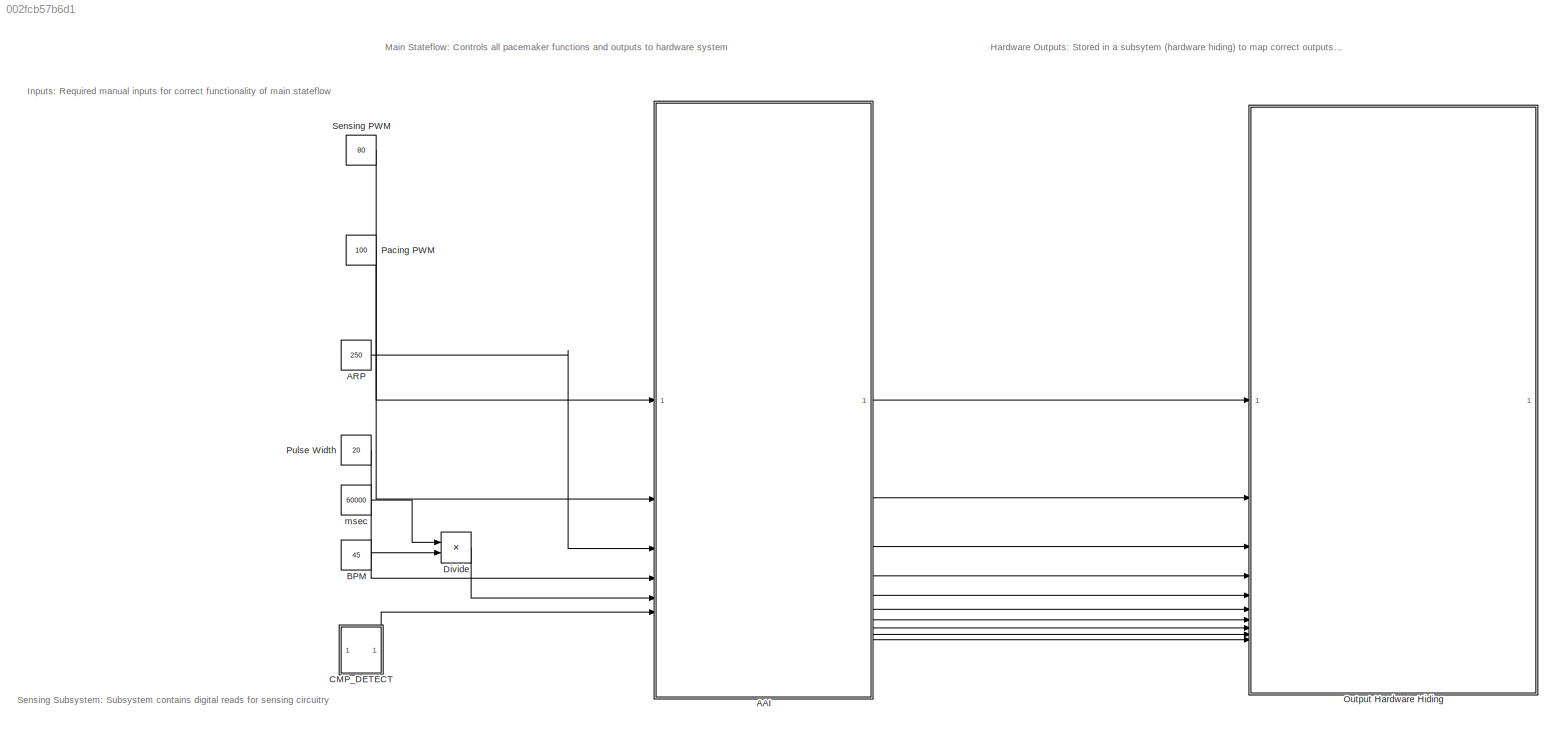
MODEL slx_002fcb57b6d1
KIND model
CONFIG AbsTol = auto
CONFIG EnableMultiTasking = on
CONFIG FixedStep = 1e-3
CONFIG MaxStep = auto
CONFIG MinStep = auto
CONFIG RelTol = 1e-3
CONFIG SampleTimeConstraint = Unconstrained
CONFIG SolverName = FixedStepAuto
CONFIG StartTime = 0.0
CONFIG StopTime = 10.0
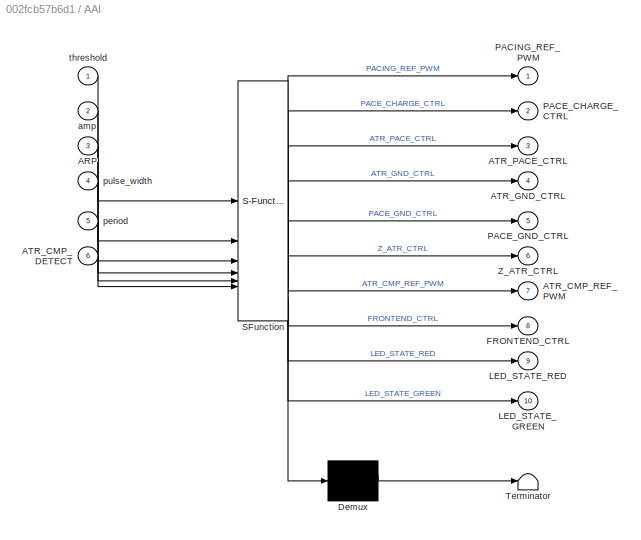
BLOCK [SubSystem] AAI
  ErrorFcn = Stateflow.Translate.translate
  PermitHierarchicalResolution = ExplicitOnly
  SFBlockType = Chart
  TreatAsAtomicUnit = on
BLOCK [Demux] AAI/ Demux 
  Outputs = 1
BLOCK [S-Function] AAI/ SFunction 
  EnableBusSupport = on
  FunctionName = sf_sfun
  PortCounts = [6 11]
  SFcnIsStateOwnerBlock = off
  SFunctionDeploymentMode = off
  Tag = Stateflow S-Function 3
BLOCK [Terminator] AAI/ Terminator 
BLOCK [Inport] AAI/ARP
  Port = 3
BLOCK [Inport] AAI/ATR_CMP_DETECT
  Port = 6
BLOCK [Outport] AAI/ATR_CMP_REF_PWM
  Port = 7
BLOCK [Outport] AAI/ATR_GND_CTRL
  Port = 4
BLOCK [Outport] AAI/ATR_PACE_CTRL
  Port = 3
BLOCK [Outport] AAI/FRONTEND_CTRL
  Port = 8
BLOCK [Outport] AAI/LED_STATE_GREEN
  Port = 10
BLOCK [Outport] AAI/LED_STATE_RED
  Port = 9
BLOCK [Outport] AAI/PACE_CHARGE_CTRL
  Port = 2
BLOCK [Outport] AAI/PACE_GND_CTRL
  Port = 5
BLOCK [Outport] AAI/PACING_REF_PWM
BLOCK [Outport] AAI/Z_ATR_CTRL
  Port = 6
BLOCK [Inport] AAI/amp
  Port = 2
BLOCK [Inport] AAI/period
  Port = 5
BLOCK [Inport] AAI/pulse_width
  Port = 4
BLOCK [Inport] AAI/threshold
BLOCK [Constant] ARP
  Value = 250
BLOCK [Constant] BPM
  Value = 45
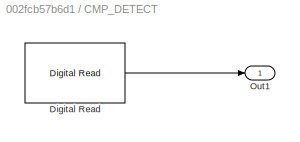
BLOCK [SubSystem] CMP_DETECT
BLOCK [Reference] CMP_DETECT/Digital Read  REF=frdmk64flib/Digital Read
  SourceBlock = frdmk64flib/Digital Read
  SourceType = freedomk64f.DigitalRead
BLOCK [Outport] CMP_DETECT/Out1
BLOCK [Product] Divide
  Inputs = */
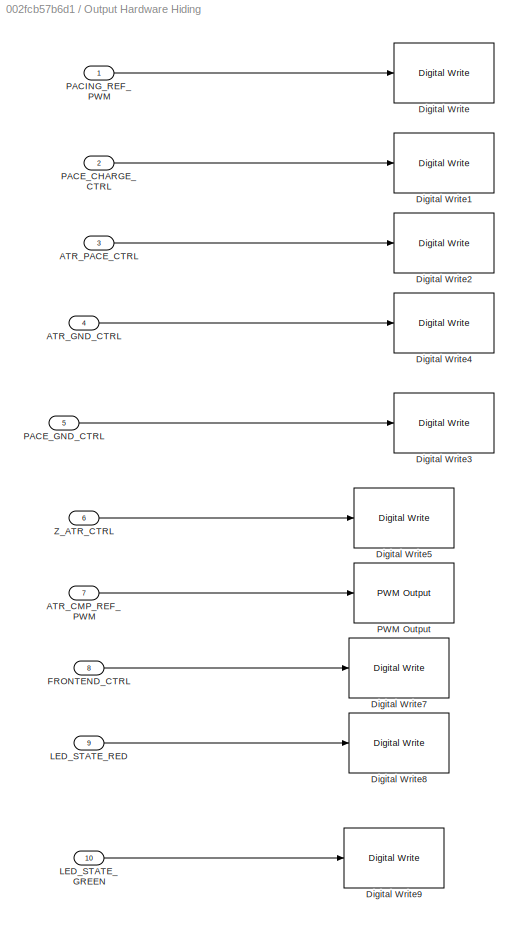
BLOCK [SubSystem] Output Hardware Hiding
BLOCK [Inport] Output Hardware Hiding/ATR_CMP_REF_PWM
  Port = 7
BLOCK [Inport] Output Hardware Hiding/ATR_GND_CTRL
  Port = 4
BLOCK [Inport] Output Hardware Hiding/ATR_PACE_CTRL
  Port = 3
BLOCK [Reference] Output Hardware Hiding/Digital Write  REF=frdmk64flib/Digital Write
  SourceBlock = frdmk64flib/Digital Write
  SourceType = freedomk64f.DigitalWrite
BLOCK [Reference] Output Hardware Hiding/Digital Write1  REF=frdmk64flib/Digital Write
  SourceBlock = frdmk64flib/Digital Write
  SourceType = freedomk64f.DigitalWrite
BLOCK [Reference] Output Hardware Hiding/Digital Write2  REF=frdmk64flib/Digital Write
  SourceBlock = frdmk64flib/Digital Write
  SourceType = freedomk64f.DigitalWrite
BLOCK [Reference] Output Hardware Hiding/Digital Write3  REF=frdmk64flib/Digital Write
  SourceBlock = frdmk64flib/Digital Write
  SourceType = freedomk64f.DigitalWrite
BLOCK [Reference] Output Hardware Hiding/Digital Write4  REF=frdmk64flib/Digital Write
  SourceBlock = frdmk64flib/Digital Write
  SourceType = freedomk64f.DigitalWrite
BLOCK [Reference] Output Hardware Hiding/Digital Write5  REF=frdmk64flib/Digital Write
  SourceBlock = frdmk64flib/Digital Write
  SourceType = freedomk64f.DigitalWrite
BLOCK [Reference] Output Hardware Hiding/Digital Write7  REF=frdmk64flib/Digital Write
  SourceBlock = frdmk64flib/Digital Write
  SourceType = freedomk64f.DigitalWrite
BLOCK [Reference] Output Hardware Hiding/Digital Write8  REF=frdmk64flib/Digital Write
  SourceBlock = frdmk64flib/Digital Write
  SourceType = freedomk64f.DigitalWrite
BLOCK [Reference] Output Hardware Hiding/Digital Write9  REF=frdmk64flib/Digital Write
  SourceBlock = frdmk64flib/Digital Write
  SourceType = freedomk64f.DigitalWrite
BLOCK [Inport] Output Hardware Hiding/FRONTEND_CTRL
  Port = 8
BLOCK [Inport] Output Hardware Hiding/LED_STATE_GREEN
  Port = 10
BLOCK [Inport] Output Hardware Hiding/LED_STATE_RED
  Port = 9
BLOCK [Inport] Output Hardware Hiding/PACE_CHARGE_CTRL
  Port = 2
BLOCK [Inport] Output Hardware Hiding/PACE_GND_CTRL
  Port = 5
BLOCK [Inport] Output Hardware Hiding/PACING_REF_PWM
BLOCK [Reference] Output Hardware Hiding/PWM Output  REF=frdmk64flib/PWM Output
  SourceBlock = frdmk64flib/PWM Output
  SourceType = freedomk64f.PWMOutput
BLOCK [Inport] Output Hardware Hiding/Z_ATR_CTRL
  Port = 6
BLOCK [Constant] Pacing PWM
  Value = 100
BLOCK [Constant] Pulse Width
  Value = 20
BLOCK [Constant] Sensing PWM
  Value = 80
BLOCK [Constant] msec
  Value = 60000
ANNOTATION (root): Inputs: Required manual inputs for correct functionality of main stateflow
ANNOTATION (root): Sensing Subsystem: Subsystem contains digital reads for sensing circuitry
ANNOTATION (root): Hardware Outputs: Stored in a subsytem (hardware hiding) to map correct outputs to associated hardware pins.
ANNOTATION (root): Main Stateflow: Controls all pacemaker functions and outputs to hardware system
LINE AAI:1 -> Output Hardware Hiding:1
LINE AAI:10 -> Output Hardware Hiding:10
LINE AAI:2 -> Output Hardware Hiding:2
LINE AAI:3 -> Output Hardware Hiding:3
LINE AAI:4 -> Output Hardware Hiding:4
LINE AAI:5 -> Output Hardware Hiding:5
LINE AAI:6 -> Output Hardware Hiding:6
LINE AAI:7 -> Output Hardware Hiding:7
LINE AAI:8 -> Output Hardware Hiding:8
LINE AAI:9 -> Output Hardware Hiding:9
LINE ARP:1 -> AAI:3
LINE BPM:1 -> Divide:2
LINE CMP_DETECT/Digital Read:1 -> CMP_DETECT/Out1:1
LINE CMP_DETECT:1 -> AAI:6
LINE Divide:1 -> AAI:5
LINE Output Hardware Hiding/ATR_CMP_REF_PWM:1 -> Output Hardware Hiding/PWM Output:1
LINE Output Hardware Hiding/ATR_GND_CTRL:1 -> Output Hardware Hiding/Digital Write4:1
LINE Output Hardware Hiding/ATR_PACE_CTRL:1 -> Output Hardware Hiding/Digital Write2:1
LINE Output Hardware Hiding/FRONTEND_CTRL:1 -> Output Hardware Hiding/Digital Write7:1
LINE Output Hardware Hiding/LED_STATE_GREEN:1 -> Output Hardware Hiding/Digital Write9:1
LINE Output Hardware Hiding/LED_STATE_RED:1 -> Output Hardware Hiding/Digital Write8:1
LINE Output Hardware Hiding/PACE_CHARGE_CTRL:1 -> Output Hardware Hiding/Digital Write1:1
LINE Output Hardware Hiding/PACE_GND_CTRL:1 -> Output Hardware Hiding/Digital Write3:1
LINE Output Hardware Hiding/PACING_REF_PWM:1 -> Output Hardware Hiding/Digital Write:1
LINE Output Hardware Hiding/Z_ATR_CTRL:1 -> Output Hardware Hiding/Digital Write5:1
LINE Pacing PWM:1 -> AAI:2
LINE Pulse Width:1 -> AAI:4
LINE Sensing PWM:1 -> AAI:1
LINE msec:1 -> Divide:1
CHART AAI states=5 transitions=5
  STATE_LABEL '<!DOCTYPE HTML PUBLIC "-//W3C//DTD HTML 4.0//EN" "http://www.w3.org/TR/REC-html40/strict.dtd">\n<html><head><meta name="qrichtext" content="1" /><style type="text/css">\np, li { white-space: pre-wrap; }\n</style></head><body align="left" style=" font-family:\'Helvetica\'; font-size:12px; font-weight:400; font-style:normal;">\n<p align="left" style=" margin-top:0px; margin-bottom:0px; margin-left:0px; ma...<+235ch>'
  STATE_LABEL 'Pacing\n\nentry:\nPACING_REF_PWM = amp;\nPACE_CHARGE_CTRL = 0;\nATR_PACE_CTRL = 1;\nATR_GND_CTRL =0;\nPACE_GND_CTRL = 1;\nZ_ATR_CTRL =0;\nLED_STATE_RED = false;\nLED_STATE_GREEN = true;\nFRONTEND_CTRL = 1;\n'
  STATE_LABEL 'Charging_Sensing\n\n%CHARGING\nentry:\nPACING_REF_PWM = amp;\nPACE_CHARGE_CTRL = 1;\nATR_PACE_CTRL = 0;\nATR_GND_CTRL =1;\nPACE_GND_CTRL = 0;\nZ_ATR_CTRL = 0;\n%sSENSING\nFRONTEND_CTRL = 1;\nATR_CMP_REF_PWM = threshold;\nLED_STATE_RED = true;\nLED_STATE_GREEN = false;'
  STATE_LABEL '<!DOCTYPE HTML PUBLIC "-//W3C//DTD HTML 4.0//EN" "http://www.w3.org/TR/REC-html40/strict.dtd">\n<html><head><meta name="qrichtext" content="1" /><style type="text/css">\np, li { white-space: pre-wrap; }\n</style></head><body align="left" style=" font-family:\'MS Shell Dlg 2\'; font-size:11px; font-weight:600; font-style:normal;">\n<p align="left" style=" margin-top:0px; margin-bottom:0px; margin-left:0p...<+428ch>'
  STATE_LABEL '<!DOCTYPE HTML PUBLIC "-//W3C//DTD HTML 4.0//EN" "http://www.w3.org/TR/REC-html40/strict.dtd">\n<html><head><meta name="qrichtext" content="1" /><style type="text/css">\np, li { white-space: pre-wrap; }\n</style></head><body align="left" style=" font-family:\'Helvetica\'; font-size:12px; font-weight:400; font-style:normal;">\n<p align="left" style=" margin-top:0px; margin-bottom:0px; margin-left:0px; ma...<+556ch>'
CHART  states=0 transitions=0
